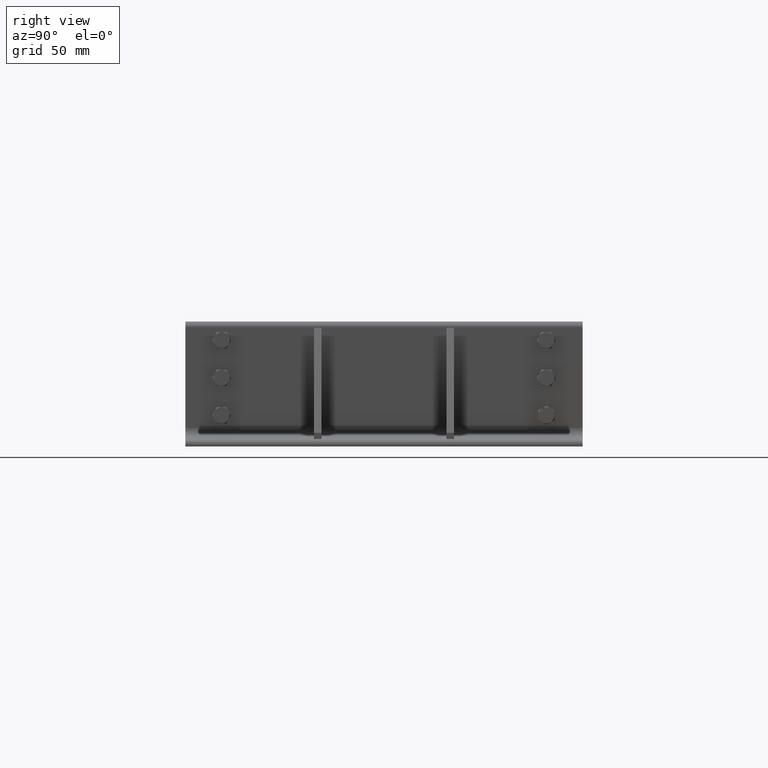
[diagram: clean part render]
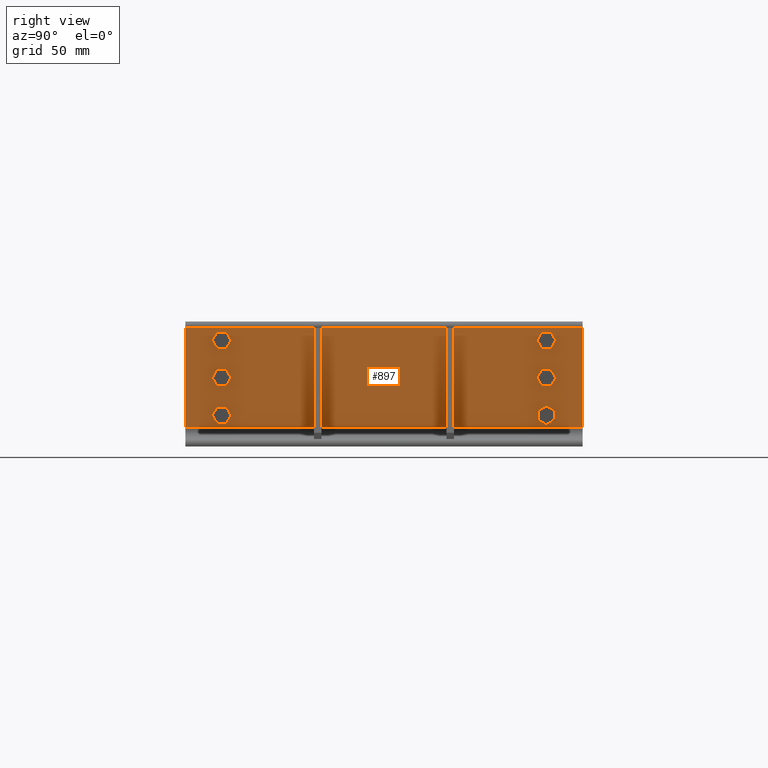
[diagram: same view with one face highlighted and labeled with its STEP entity id]
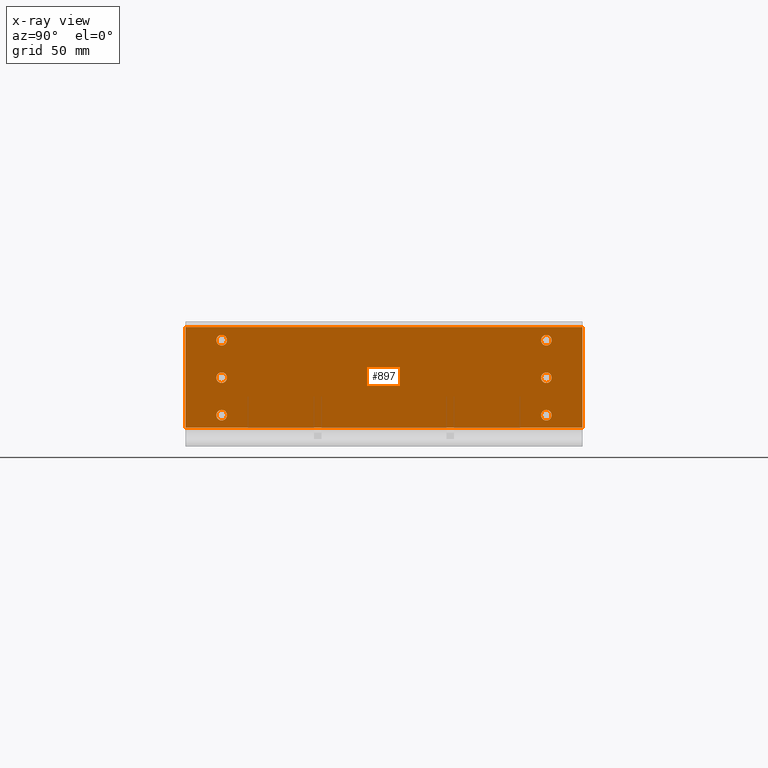
[diagram: x-ray of the same camera — body ghosted, the highlighted face saturated]
A machine part, right view. The second image highlights one B-rep face of the part: STEP entity #897.
The next image is the same camera in x-ray: the body ghosted, the highlighted face saturated — about 0% of this face is hidden behind the body in this view.
In plain terms, the highlighted planar face has unit normal (1, -0, 0).
Its self-contained STEP definition (entity closure, byte-faithful):
#274=CARTESIAN_POINT('',(5.999999999999998,0.0,15.000000000000002));
#275=VERTEX_POINT('',#274);
#293=CARTESIAN_POINT('',(5.999999999999998,318.0,15.000000000000002));
#294=VERTEX_POINT('',#293);
#302=CARTESIAN_POINT('',(5.999999999999998,318.0,15.000000000000002));
#303=DIRECTION('',(0.0,-1.0,0.0));
#304=VECTOR('',#303,318.0);
#305=LINE('',#302,#304);
#306=EDGE_CURVE('',#294,#275,#305,.T.);
#423=CARTESIAN_POINT('',(6.000000000000022,0.0,95.5));
#424=VERTEX_POINT('',#423);
#425=CARTESIAN_POINT('',(5.999999999999999,0.0,15.000000000000004));
#426=DIRECTION('',(0.0,0.0,1.0));
#427=VECTOR('',#426,80.500000000000014);
#428=LINE('',#425,#427);
#429=EDGE_CURVE('',#275,#424,#428,.T.);
#471=CARTESIAN_POINT('',(6.000000000000022,318.0,95.5));
#472=VERTEX_POINT('',#471);
#489=CARTESIAN_POINT('',(6.000000000000022,0.0,95.5));
#490=DIRECTION('',(0.0,1.0,0.0));
#491=VECTOR('',#490,318.0);
#492=LINE('',#489,#491);
#493=EDGE_CURVE('',#424,#472,#492,.T.);
#527=CARTESIAN_POINT('',(6.000000000000023,289.0,59.249999999999986));
#528=VERTEX_POINT('',#527);
#529=CARTESIAN_POINT('',(6.000000000000023,289.0,55.0));
#530=DIRECTION('',(-1.0,0.0,0.0));
#531=DIRECTION('',(0.0,0.0,-1.0));
#532=AXIS2_PLACEMENT_3D('',#529,#530,#531);
#533=CIRCLE('',#532,4.249999999999989);
#534=EDGE_CURVE('',#528,#528,#533,.T.);
#555=CARTESIAN_POINT('',(6.000000000000023,29.000000000000004,89.249999999999986));
#556=VERTEX_POINT('',#555);
#557=CARTESIAN_POINT('',(6.000000000000023,29.000000000000004,85.0));
#558=DIRECTION('',(-1.0,0.0,0.0));
#559=DIRECTION('',(0.0,0.0,-1.0));
#560=AXIS2_PLACEMENT_3D('',#557,#558,#559);
#561=CIRCLE('',#560,4.249999999999997);
#562=EDGE_CURVE('',#556,#556,#561,.T.);
#583=CARTESIAN_POINT('',(6.000000000000023,29.000000000000014,29.250000000000004));
#584=VERTEX_POINT('',#583);
#585=CARTESIAN_POINT('',(6.000000000000023,29.000000000000014,25.0));
#586=DIRECTION('',(-1.0,0.0,0.0));
#587=DIRECTION('',(0.0,0.0,-1.0));
#588=AXIS2_PLACEMENT_3D('',#585,#586,#587);
#589=CIRCLE('',#588,4.250000000000001);
#590=EDGE_CURVE('',#584,#584,#589,.T.);
#611=CARTESIAN_POINT('',(6.000000000000023,29.000000000000004,59.25));
#612=VERTEX_POINT('',#611);
#613=CARTESIAN_POINT('',(6.000000000000023,29.000000000000004,55.0));
#614=DIRECTION('',(-1.0,0.0,0.0));
#615=DIRECTION('',(0.0,0.0,-1.0));
#616=AXIS2_PLACEMENT_3D('',#613,#614,#615);
#617=CIRCLE('',#616,4.25);
#618=EDGE_CURVE('',#612,#612,#617,.T.);
#639=CARTESIAN_POINT('',(6.000000000000023,289.0,29.249999999999989));
#640=VERTEX_POINT('',#639);
#641=CARTESIAN_POINT('',(6.000000000000023,289.0,25.0));
#642=DIRECTION('',(-1.0,0.0,0.0));
#643=DIRECTION('',(0.0,0.0,-1.0));
#644=AXIS2_PLACEMENT_3D('',#641,#642,#643);
#645=CIRCLE('',#644,4.249999999999989);
#646=EDGE_CURVE('',#640,#640,#645,.T.);
#667=CARTESIAN_POINT('',(6.000000000000023,289.00000000000006,89.249999999999986));
#668=VERTEX_POINT('',#667);
#669=CARTESIAN_POINT('',(6.000000000000023,289.00000000000006,85.0));
#670=DIRECTION('',(-1.0,0.0,0.0));
#671=DIRECTION('',(0.0,0.0,-1.0));
#672=AXIS2_PLACEMENT_3D('',#669,#670,#671);
#673=CIRCLE('',#672,4.249999999999991);
#674=EDGE_CURVE('',#668,#668,#673,.T.);
#863=CARTESIAN_POINT('',(6.000000000000023,0.0,100.0));
#864=DIRECTION('',(1.0,0.0,0.0));
#865=DIRECTION('',(0.0,0.0,-1.0));
#866=AXIS2_PLACEMENT_3D('',#863,#864,#865);
#867=PLANE('',#866);
#868=ORIENTED_EDGE('',*,*,#306,.F.);
#869=CARTESIAN_POINT('',(6.000000000000022,318.0,95.500000000000014));
#870=DIRECTION('',(0.0,0.0,-1.0));
#871=VECTOR('',#870,80.500000000000014);
#872=LINE('',#869,#871);
#873=EDGE_CURVE('',#472,#294,#872,.T.);
#874=ORIENTED_EDGE('',*,*,#873,.F.);
#875=ORIENTED_EDGE('',*,*,#493,.F.);
#876=ORIENTED_EDGE('',*,*,#429,.F.);
#877=EDGE_LOOP('',(#868,#874,#875,#876));
#878=FACE_OUTER_BOUND('',#877,.T.);
#879=ORIENTED_EDGE('',*,*,#534,.T.);
#880=EDGE_LOOP('',(#879));
#881=FACE_BOUND('',#880,.T.);
#882=ORIENTED_EDGE('',*,*,#562,.T.);
#883=EDGE_LOOP('',(#882));
#884=FACE_BOUND('',#883,.T.);
#885=ORIENTED_EDGE('',*,*,#590,.T.);
#886=EDGE_LOOP('',(#885));
#887=FACE_BOUND('',#886,.T.);
#888=ORIENTED_EDGE('',*,*,#618,.T.);
#889=EDGE_LOOP('',(#888));
#890=FACE_BOUND('',#889,.T.);
#891=ORIENTED_EDGE('',*,*,#646,.T.);
#892=EDGE_LOOP('',(#891));
#893=FACE_BOUND('',#892,.T.);
#894=ORIENTED_EDGE('',*,*,#674,.T.);
#895=EDGE_LOOP('',(#894));
#896=FACE_BOUND('',#895,.T.);
#897=ADVANCED_FACE('',(#878,#881,#884,#887,#890,#893,#896),#867,.T.);